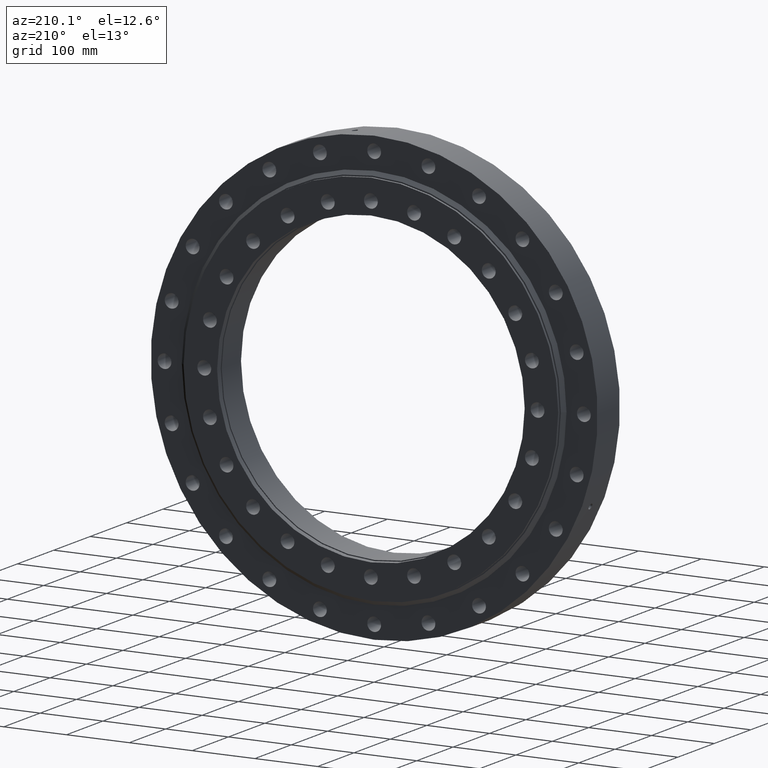
[diagram: clean part render]
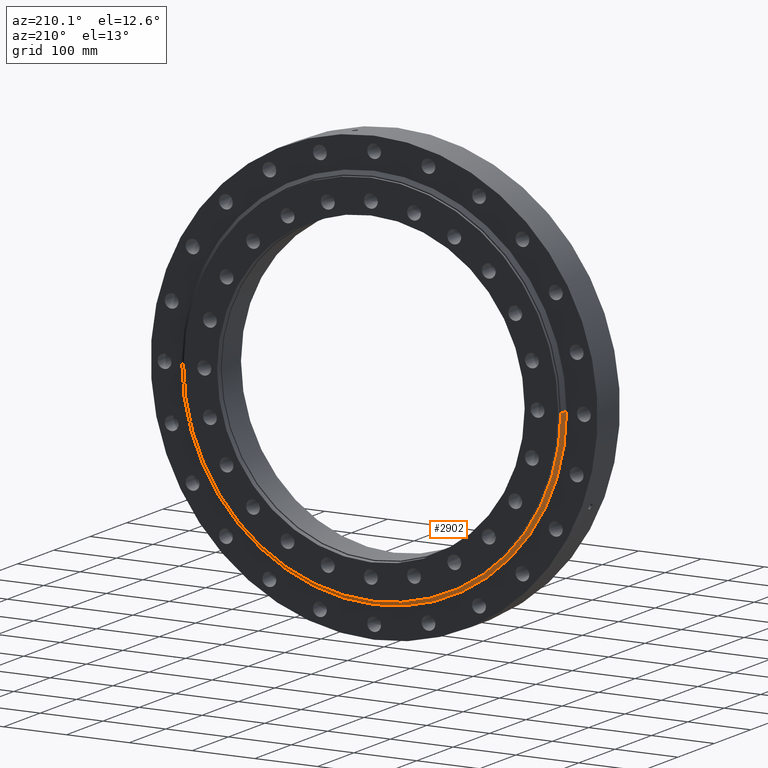
[diagram: same view with one face highlighted and labeled with its STEP entity id]
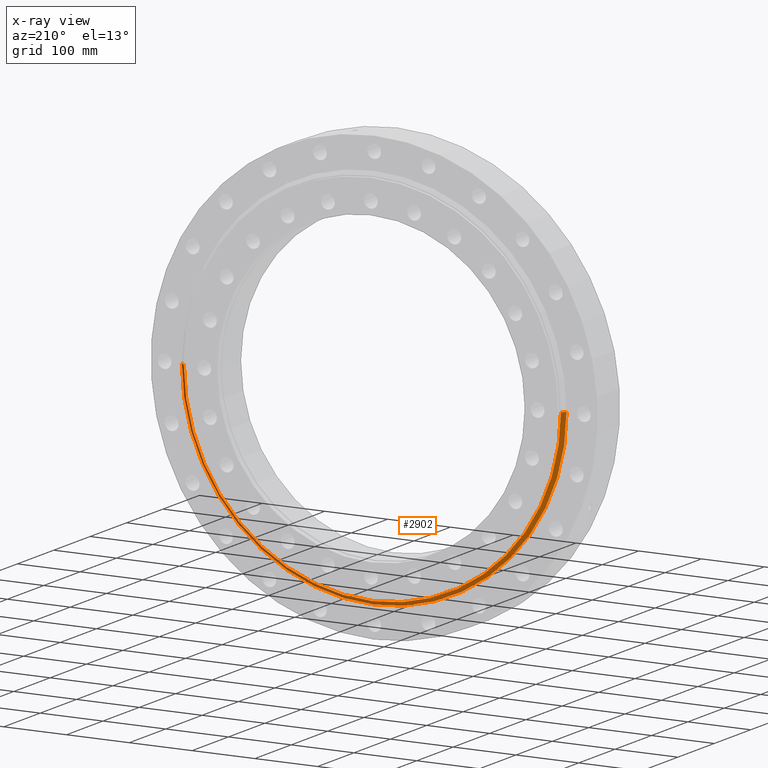
[diagram: x-ray of the same camera — body ghosted, the highlighted face saturated]
A machine part, auxiliary view. The second image highlights one B-rep face of the part: STEP entity #2902.
The next image is the same camera in x-ray: the body ghosted, the highlighted face saturated — about 0% of this face is hidden behind the body in this view.
In plain terms, the highlighted conical surface has half-angle 49.914 deg.
Its self-contained STEP definition (entity closure, byte-faithful):
#88 = CIRCLE ( 'NONE', #1464, 300.4125000000000200 ) ;
#389 = CIRCLE ( 'NONE', #4662, 306.4125000000000200 ) ;
#525 = CARTESIAN_POINT ( 'NONE',  ( 306.4125000000000200, 26.99999999999988600, 0.0000000000000000000 ) ) ;
#620 = DIRECTION ( 'NONE',  ( -1.000000000000000000, 1.847830940165866000E-016, 0.0000000000000000000 ) ) ;
#658 = DIRECTION ( 'NONE',  ( 1.836909530733565900E-016, 1.000000000000000000, -0.0000000000000000000 ) ) ;
#879 = CARTESIAN_POINT ( 'NONE',  ( 9.173455204810495700E-017, 32.04999999999999700, 0.0000000000000000000 ) ) ;
#969 = DIRECTION ( 'NONE',  ( 1.000000000000000000, -1.811647737323308400E-016, 0.0000000000000000000 ) ) ;
#1164 = VERTEX_POINT ( 'NONE', #525 ) ;
#1227 = EDGE_CURVE ( 'NONE', #2219, #5583, #3812, .T. ) ;
#1405 = DIRECTION ( 'NONE',  ( 0.7650765054985537700, -0.6439393921279560300, 0.0000000000000000000 ) ) ;
#1464 = AXIS2_PLACEMENT_3D ( 'NONE', #879, #658, #620 ) ;
#1728 = CARTESIAN_POINT ( 'NONE',  ( 300.4125000000000200, 32.04999999999994000, 0.0000000000000000000 ) ) ;
#1792 = EDGE_CURVE ( 'NONE', #2818, #2219, #88, .T. ) ;
#1861 = CARTESIAN_POINT ( 'NONE',  ( -300.4125000000000200, 32.05000000000005400, 3.715731469462964000E-014 ) ) ;
#1967 = DIRECTION ( 'NONE',  ( -0.7650765054985539900, -0.6439393921279558100, 9.369484935616464100E-017 ) ) ;
#2219 = VERTEX_POINT ( 'NONE', #1861 ) ;
#2359 = CARTESIAN_POINT ( 'NONE',  ( 306.4125000000000200, 26.99999999999988600, 0.0000000000000000000 ) ) ;
#2676 = EDGE_CURVE ( 'NONE', #1164, #5583, #389, .T. ) ;
#2818 = VERTEX_POINT ( 'NONE', #1728 ) ;
#2902 = ADVANCED_FACE ( 'NONE', ( #5007 ), #5251, .T. ) ;
#2991 = EDGE_CURVE ( 'NONE', #2818, #1164, #5733, .T. ) ;
#3088 = ORIENTED_EDGE ( 'NONE', *, *, #2991, .T. ) ;
#3192 = CARTESIAN_POINT ( 'NONE',  ( -306.4125000000000200, 26.99999999999999600, 3.752470873437384600E-014 ) ) ;
#3287 = ORIENTED_EDGE ( 'NONE', *, *, #2676, .T. ) ;
#3292 = CARTESIAN_POINT ( 'NONE',  ( -306.4125000000000200, 26.99999999999999600, 3.752470873437383900E-014 ) ) ;
#3331 = DIRECTION ( 'NONE',  ( -1.836909530733565900E-016, -1.000000000000000000, 0.0000000000000000000 ) ) ;
#3512 = VECTOR ( 'NONE', #1967, 1000.000000000000000 ) ;
#3812 = LINE ( 'NONE', #3192, #3512 ) ;
#3895 = ORIENTED_EDGE ( 'NONE', *, *, #1227, .F. ) ;
#4054 = AXIS2_PLACEMENT_3D ( 'NONE', #4093, #3331, #969 ) ;
#4093 = CARTESIAN_POINT ( 'NONE',  ( -8.359047609723560300E-016, 26.99999999999994000, 0.0000000000000000000 ) ) ;
#4218 = EDGE_LOOP ( 'NONE', ( #3895, #5361, #3088, #3287 ) ) ;
#4662 = AXIS2_PLACEMENT_3D ( 'NONE', #5604, #5436, #5480 ) ;
#5007 = FACE_OUTER_BOUND ( 'NONE', #4218, .T. ) ;
#5010 = VECTOR ( 'NONE', #1405, 1000.000000000000000 ) ;
#5251 = CONICAL_SURFACE ( 'NONE', #4054, 306.4125000000000200, 0.8711601305813050400 ) ;
#5361 = ORIENTED_EDGE ( 'NONE', *, *, #1792, .F. ) ;
#5436 = DIRECTION ( 'NONE',  ( 1.836909530733565900E-016, 1.000000000000000000, -0.0000000000000000000 ) ) ;
#5480 = DIRECTION ( 'NONE',  ( -1.000000000000000000, 1.811647737323308400E-016, 0.0000000000000000000 ) ) ;
#5583 = VERTEX_POINT ( 'NONE', #3292 ) ;
#5604 = CARTESIAN_POINT ( 'NONE',  ( -8.359047609723560300E-016, 26.99999999999994000, 0.0000000000000000000 ) ) ;
#5733 = LINE ( 'NONE', #2359, #5010 ) ;